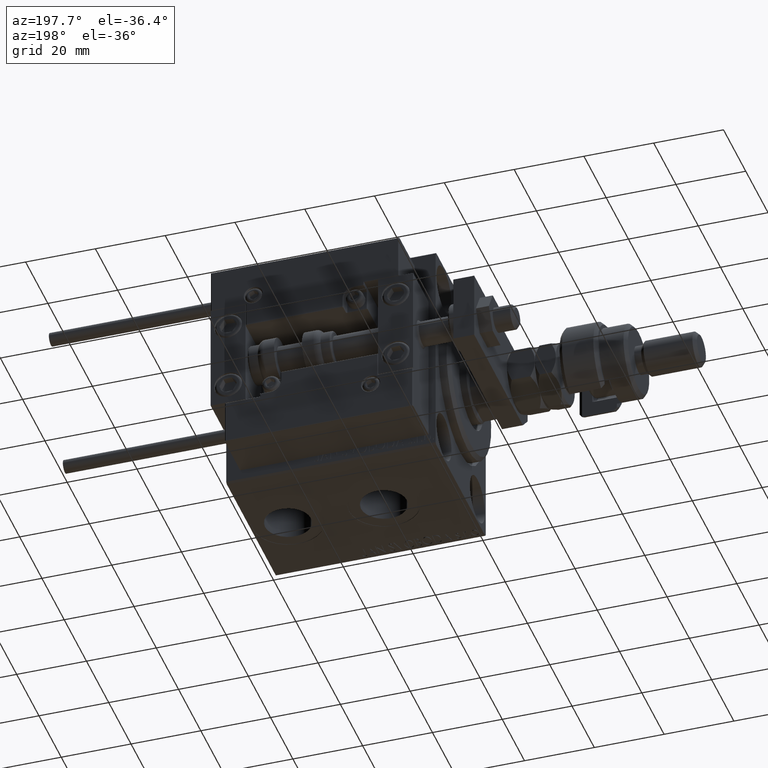
[diagram: clean part render]
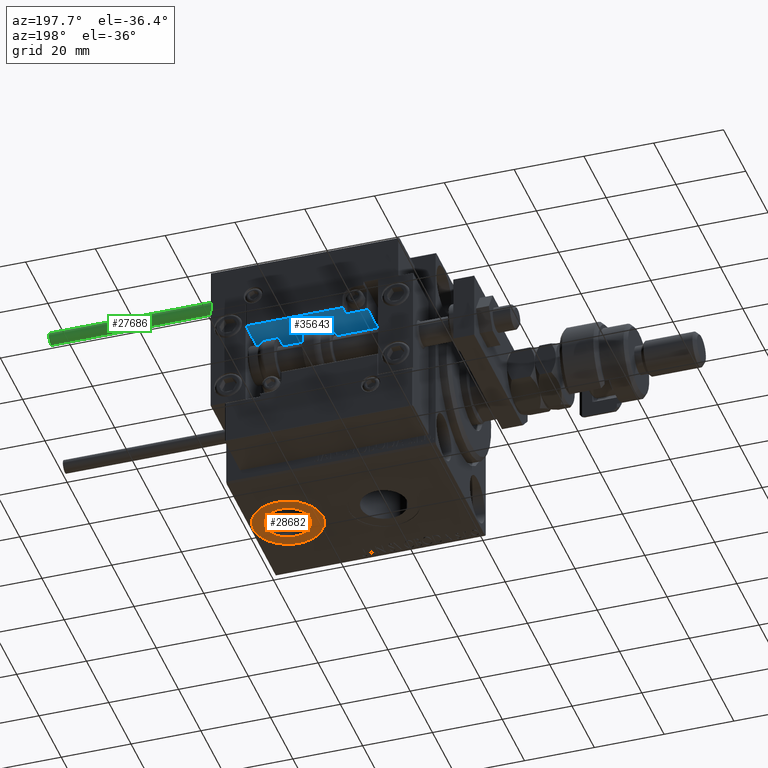
[diagram: same view with three faces highlighted in distinct colors, each labeled with its STEP entity id]
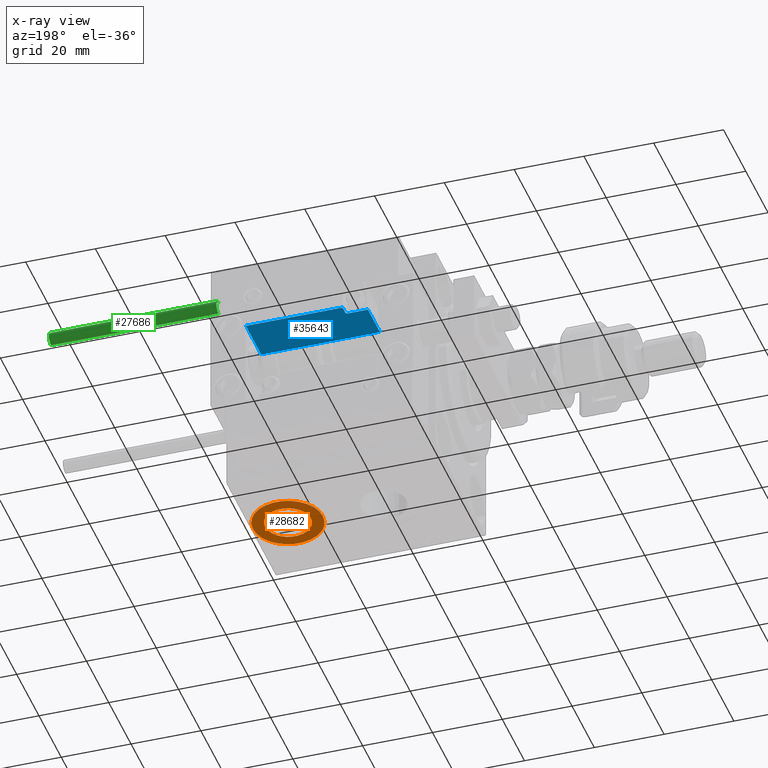
[diagram: x-ray of the same camera — body ghosted, the three highlighted faces saturated]
A machine part, auxiliary view with three faces highlighted in distinct colors.
The next image is the same camera in x-ray (body ghosted, the three faces saturated) — at least one of them is partly hidden behind the body in this view.
Their STEP definitions:

[orange] entity #28682 — the highlighted planar face has unit normal (0, 0, -1).
#788 = CIRCLE ( 'NONE', #25387, 10.00000000000000178 ) ;
#1000 = CARTESIAN_POINT ( 'NONE',  ( 42.91999999999999460, -6.655964947265702476E-15, -32.40000000000000568 ) ) ;
#1470 = CARTESIAN_POINT ( 'NONE',  ( 39.49999999999999289, -6.655964947265702476E-15, -32.40000000000000568 ) ) ;
#3249 = AXIS2_PLACEMENT_3D ( 'NONE', #50631, #38502, #46786 ) ;
#4137 = VERTEX_POINT ( 'NONE', #46632 ) ;
#9414 = EDGE_CURVE ( 'NONE', #4137, #40626, #34812, .T. ) ;
#10539 = VERTEX_POINT ( 'NONE', #50951 ) ;
#10754 = CARTESIAN_POINT ( 'NONE',  ( 49.49999999999999289, -6.655964947265702476E-15, -32.40000000000000568 ) ) ;
#11078 = EDGE_CURVE ( 'NONE', #40626, #4137, #26952, .T. ) ;
#11943 = VERTEX_POINT ( 'NONE', #1470 ) ;
#12390 = DIRECTION ( 'NONE',  ( -1.000000000000000000, 0.000000000000000000, 0.000000000000000000 ) ) ;
#14731 = DIRECTION ( 'NONE',  ( -1.000000000000000000, 0.000000000000000000, 0.000000000000000000 ) ) ;
#15873 = PLANE ( 'NONE',  #40957 ) ;
#16141 = CARTESIAN_POINT ( 'NONE',  ( 49.49999999999999289, -6.655964947265702476E-15, -32.40000000000000568 ) ) ;
#17378 = EDGE_LOOP ( 'NONE', ( #43135, #22791 ) ) ;
#17715 = EDGE_CURVE ( 'NONE', #11943, #10539, #788, .T. ) ;
#18860 = DIRECTION ( 'NONE',  ( 0.000000000000000000, 0.000000000000000000, -1.000000000000000000 ) ) ;
#22791 = ORIENTED_EDGE ( 'NONE', *, *, #9414, .F. ) ;
#23405 = DIRECTION ( 'NONE',  ( -1.000000000000000000, 0.000000000000000000, 0.000000000000000000 ) ) ;
#24278 = EDGE_CURVE ( 'NONE', #10539, #11943, #30857, .T. ) ;
#25387 = AXIS2_PLACEMENT_3D ( 'NONE', #40028, #18860, #14731 ) ;
#26952 = CIRCLE ( 'NONE', #3249, 6.580000000000002736 ) ;
#28233 = AXIS2_PLACEMENT_3D ( 'NONE', #10754, #40709, #23405 ) ;
#28682 = ADVANCED_FACE ( 'NONE', ( #33447, #36745 ), #15873, .T. ) ;
#28697 = ORIENTED_EDGE ( 'NONE', *, *, #24278, .T. ) ;
#30857 = CIRCLE ( 'NONE', #28233, 10.00000000000000178 ) ;
#33447 = FACE_BOUND ( 'NONE', #17378, .T. ) ;
#33923 = AXIS2_PLACEMENT_3D ( 'NONE', #36845, #50068, #12390 ) ;
#34812 = CIRCLE ( 'NONE', #33923, 6.580000000000002736 ) ;
#36471 = DIRECTION ( 'NONE',  ( 0.000000000000000000, 0.000000000000000000, -1.000000000000000000 ) ) ;
#36745 = FACE_OUTER_BOUND ( 'NONE', #40214, .T. ) ;
#36845 = CARTESIAN_POINT ( 'NONE',  ( 49.49999999999999289, -6.655964947265702476E-15, -32.40000000000000568 ) ) ;
#38502 = DIRECTION ( 'NONE',  ( 0.000000000000000000, 0.000000000000000000, -1.000000000000000000 ) ) ;
#40028 = CARTESIAN_POINT ( 'NONE',  ( 49.49999999999999289, -6.655964947265702476E-15, -32.40000000000000568 ) ) ;
#40214 = EDGE_LOOP ( 'NONE', ( #42155, #28697 ) ) ;
#40626 = VERTEX_POINT ( 'NONE', #1000 ) ;
#40709 = DIRECTION ( 'NONE',  ( 0.000000000000000000, 0.000000000000000000, -1.000000000000000000 ) ) ;
#40957 = AXIS2_PLACEMENT_3D ( 'NONE', #16141, #36471, #49427 ) ;
#42155 = ORIENTED_EDGE ( 'NONE', *, *, #17715, .T. ) ;
#43135 = ORIENTED_EDGE ( 'NONE', *, *, #11078, .F. ) ;
#46632 = CARTESIAN_POINT ( 'NONE',  ( 56.07999999999999829, -5.850147353426744223E-15, -32.40000000000000568 ) ) ;
#46786 = DIRECTION ( 'NONE',  ( -1.000000000000000000, 0.000000000000000000, 0.000000000000000000 ) ) ;
#49427 = DIRECTION ( 'NONE',  ( -1.000000000000000000, 0.000000000000000000, -0.000000000000000000 ) ) ;
#50068 = DIRECTION ( 'NONE',  ( 0.000000000000000000, 0.000000000000000000, -1.000000000000000000 ) ) ;
#50631 = CARTESIAN_POINT ( 'NONE',  ( 49.49999999999999289, -6.655964947265702476E-15, -32.40000000000000568 ) ) ;
#50951 = CARTESIAN_POINT ( 'NONE',  ( 59.50000000000000000, -5.431318148118349417E-15, -32.40000000000000568 ) ) ;

[blue] entity #35643 — the highlighted planar face has unit normal (0, 0, 1).
#15 = AXIS2_PLACEMENT_3D ( 'NONE', #20384, #44587, #11335 ) ;
#983 = VERTEX_POINT ( 'NONE', #48795 ) ;
#1409 = EDGE_CURVE ( 'NONE', #11657, #53049, #39234, .T. ) ;
#3614 = ORIENTED_EDGE ( 'NONE', *, *, #27115, .T. ) ;
#4695 = VECTOR ( 'NONE', #49101, 1000.000000000000000 ) ;
#6003 = VERTEX_POINT ( 'NONE', #50679 ) ;
#6128 = EDGE_LOOP ( 'NONE', ( #14207, #3614, #32522, #42134, #21801, #8012, #8613 ) ) ;
#6337 = DIRECTION ( 'NONE',  ( 0.000000000000000000, -0.000000000000000000, 1.000000000000000000 ) ) ;
#7585 = LINE ( 'NONE', #11145, #4695 ) ;
#8012 = ORIENTED_EDGE ( 'NONE', *, *, #47651, .T. ) ;
#8613 = ORIENTED_EDGE ( 'NONE', *, *, #44819, .T. ) ;
#10365 = CARTESIAN_POINT ( 'NONE',  ( -16.99999999999999289, 3.252606517456513302E-15, 13.70000000000000107 ) ) ;
#11145 = CARTESIAN_POINT ( 'NONE',  ( -16.99999999999999289, 3.252606517456513302E-15, 14.00000000000000000 ) ) ;
#11335 = DIRECTION ( 'NONE',  ( 0.000000000000000000, -0.000000000000000000, 1.000000000000000000 ) ) ;
#11657 = VERTEX_POINT ( 'NONE', #25747 ) ;
#13492 = DIRECTION ( 'NONE',  ( 0.000000000000000000, 0.000000000000000000, 1.000000000000000000 ) ) ;
#14207 = ORIENTED_EDGE ( 'NONE', *, *, #41702, .F. ) ;
#15522 = CARTESIAN_POINT ( 'NONE',  ( 16.99999999999999289, 3.252606517456513302E-15, 14.00000000000000000 ) ) ;
#16623 = DIRECTION ( 'NONE',  ( -1.000000000000000000, 0.000000000000000000, -0.000000000000000000 ) ) ;
#20384 = CARTESIAN_POINT ( 'NONE',  ( -16.99999999999999289, 3.252606517456513302E-15, 14.00000000000000000 ) ) ;
#21801 = ORIENTED_EDGE ( 'NONE', *, *, #1409, .T. ) ;
#21830 = CARTESIAN_POINT ( 'NONE',  ( 11.00000000000000000, 3.252606517456513302E-15, 10.69999999999999929 ) ) ;
#21943 = EDGE_CURVE ( 'NONE', #44134, #11657, #39857, .T. ) ;
#23301 = LINE ( 'NONE', #35917, #42313 ) ;
#24521 = VECTOR ( 'NONE', #47784, 1000.000000000000000 ) ;
#24877 = CARTESIAN_POINT ( 'NONE',  ( -16.99999999999999289, 3.252606517456513302E-15, 13.70000000000000107 ) ) ;
#25747 = CARTESIAN_POINT ( 'NONE',  ( 10.70000000000000107, 3.252606517456513302E-15, 13.70000000000000107 ) ) ;
#27115 = EDGE_CURVE ( 'NONE', #983, #48710, #45780, .T. ) ;
#27235 = CARTESIAN_POINT ( 'NONE',  ( 10.70000000000000107, 3.252606517456513302E-15, 14.00000000000000000 ) ) ;
#28644 = PLANE ( 'NONE',  #15 ) ;
#29994 = DIRECTION ( 'NONE',  ( -0.000000000000000000, -1.000000000000000000, -0.000000000000000000 ) ) ;
#32222 = CARTESIAN_POINT ( 'NONE',  ( 11.29999999999999893, 3.252606517456513302E-15, 10.69999999999999929 ) ) ;
#32522 = ORIENTED_EDGE ( 'NONE', *, *, #44189, .F. ) ;
#33497 = CIRCLE ( 'NONE', #51093, 0.5999999999999998668 ) ;
#35643 = ADVANCED_FACE ( 'NONE', ( #53385 ), #28644, .F. ) ;
#35917 = CARTESIAN_POINT ( 'NONE',  ( -16.99999999999999289, 3.252606517456513302E-15, 0.000000000000000000 ) ) ;
#39234 = LINE ( 'NONE', #10365, #24521 ) ;
#39857 = LINE ( 'NONE', #27235, #43963 ) ;
#39905 = CARTESIAN_POINT ( 'NONE',  ( -16.99999999999999289, 3.252606517456513302E-15, 0.000000000000000000 ) ) ;
#41356 = DIRECTION ( 'NONE',  ( -0.000000000000000000, -0.000000000000000000, -1.000000000000000000 ) ) ;
#41702 = EDGE_CURVE ( 'NONE', #983, #6003, #45222, .T. ) ;
#42134 = ORIENTED_EDGE ( 'NONE', *, *, #21943, .T. ) ;
#42313 = VECTOR ( 'NONE', #52710, 1000.000000000000000 ) ;
#42987 = VERTEX_POINT ( 'NONE', #39905 ) ;
#43109 = VECTOR ( 'NONE', #41356, 1000.000000000000000 ) ;
#43433 = CARTESIAN_POINT ( 'NONE',  ( 11.29999999999999893, 3.252606517456513302E-15, 11.29999999999999893 ) ) ;
#43963 = VECTOR ( 'NONE', #6337, 1000.000000000000000 ) ;
#44134 = VERTEX_POINT ( 'NONE', #47325 ) ;
#44189 = EDGE_CURVE ( 'NONE', #44134, #48710, #33497, .T. ) ;
#44587 = DIRECTION ( 'NONE',  ( 0.000000000000000000, 1.000000000000000000, 0.000000000000000000 ) ) ;
#44819 = EDGE_CURVE ( 'NONE', #42987, #6003, #23301, .T. ) ;
#45222 = LINE ( 'NONE', #15522, #43109 ) ;
#45780 = LINE ( 'NONE', #21830, #48714 ) ;
#47325 = CARTESIAN_POINT ( 'NONE',  ( 10.70000000000000107, 3.252606517456513302E-15, 11.29999999999999893 ) ) ;
#47651 = EDGE_CURVE ( 'NONE', #53049, #42987, #7585, .T. ) ;
#47784 = DIRECTION ( 'NONE',  ( -1.000000000000000000, 0.000000000000000000, -0.000000000000000000 ) ) ;
#48710 = VERTEX_POINT ( 'NONE', #32222 ) ;
#48714 = VECTOR ( 'NONE', #16623, 1000.000000000000000 ) ;
#48795 = CARTESIAN_POINT ( 'NONE',  ( 16.99999999999999289, 3.252606517456513302E-15, 10.69999999999999929 ) ) ;
#49101 = DIRECTION ( 'NONE',  ( -0.000000000000000000, -0.000000000000000000, -1.000000000000000000 ) ) ;
#50679 = CARTESIAN_POINT ( 'NONE',  ( 16.99999999999999289, 3.252606517456513302E-15, 0.000000000000000000 ) ) ;
#51093 = AXIS2_PLACEMENT_3D ( 'NONE', #43433, #29994, #13492 ) ;
#52710 = DIRECTION ( 'NONE',  ( 1.000000000000000000, 0.000000000000000000, 0.000000000000000000 ) ) ;
#53049 = VERTEX_POINT ( 'NONE', #24877 ) ;
#53385 = FACE_OUTER_BOUND ( 'NONE', #6128, .T. ) ;

[green] entity #27686 — the highlighted cylindrical surface (edge-blend (fillet) strip) has radius 1.9 mm, axis along (-1, -0, 0).
#412 = AXIS2_PLACEMENT_3D ( 'NONE', #9331, #22510, #9597 ) ;
#2206 = VERTEX_POINT ( 'NONE', #19939 ) ;
#3479 = DIRECTION ( 'NONE',  ( 0.000000000000000000, 0.000000000000000000, 1.000000000000000000 ) ) ;
#4770 = EDGE_CURVE ( 'NONE', #48377, #2206, #29351, .T. ) ;
#5371 = ORIENTED_EDGE ( 'NONE', *, *, #4770, .T. ) ;
#5750 = CYLINDRICAL_SURFACE ( 'NONE', #412, 1.899999999999999467 ) ;
#6483 = EDGE_LOOP ( 'NONE', ( #52813, #36375, #5371, #21372 ) ) ;
#8533 = CARTESIAN_POINT ( 'NONE',  ( -1.899999999999999467, 0.000000000000000000, 48.00000000000000000 ) ) ;
#9331 = CARTESIAN_POINT ( 'NONE',  ( 0.000000000000000000, 0.000000000000000000, 48.00000000000000000 ) ) ;
#9597 = DIRECTION ( 'NONE',  ( -1.000000000000000000, 0.000000000000000000, 0.000000000000000000 ) ) ;
#11731 = DIRECTION ( 'NONE',  ( 1.000000000000000000, 0.000000000000000000, 0.000000000000000000 ) ) ;
#12638 = FACE_OUTER_BOUND ( 'NONE', #6483, .T. ) ;
#13249 = CIRCLE ( 'NONE', #51014, 1.899999999999999467 ) ;
#13900 = CARTESIAN_POINT ( 'NONE',  ( 1.899999999999999467, 2.326828918379970872E-16, 0.000000000000000000 ) ) ;
#19939 = CARTESIAN_POINT ( 'NONE',  ( -1.899999999999999467, 0.000000000000000000, 0.000000000000000000 ) ) ;
#20761 = DIRECTION ( 'NONE',  ( 0.000000000000000000, 0.000000000000000000, 1.000000000000000000 ) ) ;
#20885 = LINE ( 'NONE', #8533, #27249 ) ;
#21372 = ORIENTED_EDGE ( 'NONE', *, *, #22535, .F. ) ;
#22510 = DIRECTION ( 'NONE',  ( -0.000000000000000000, -0.000000000000000000, -1.000000000000000000 ) ) ;
#22535 = EDGE_CURVE ( 'NONE', #24797, #2206, #20885, .T. ) ;
#22695 = VECTOR ( 'NONE', #38798, 1000.000000000000000 ) ;
#24797 = VERTEX_POINT ( 'NONE', #37881 ) ;
#27249 = VECTOR ( 'NONE', #50321, 1000.000000000000000 ) ;
#27617 = AXIS2_PLACEMENT_3D ( 'NONE', #50198, #20761, #41108 ) ;
#27686 = ADVANCED_FACE ( 'NONE', ( #12638 ), #5750, .T. ) ;
#29351 = CIRCLE ( 'NONE', #27617, 1.899999999999999467 ) ;
#30293 = LINE ( 'NONE', #47087, #22695 ) ;
#30328 = VERTEX_POINT ( 'NONE', #51386 ) ;
#31781 = CARTESIAN_POINT ( 'NONE',  ( 0.000000000000000000, 0.000000000000000000, 48.00000000000000000 ) ) ;
#36375 = ORIENTED_EDGE ( 'NONE', *, *, #37047, .T. ) ;
#37047 = EDGE_CURVE ( 'NONE', #30328, #48377, #30293, .T. ) ;
#37881 = CARTESIAN_POINT ( 'NONE',  ( -1.899999999999999467, 0.000000000000000000, 48.00000000000000000 ) ) ;
#38798 = DIRECTION ( 'NONE',  ( -0.000000000000000000, -0.000000000000000000, -1.000000000000000000 ) ) ;
#41108 = DIRECTION ( 'NONE',  ( 1.000000000000000000, 0.000000000000000000, 0.000000000000000000 ) ) ;
#42329 = EDGE_CURVE ( 'NONE', #30328, #24797, #13249, .T. ) ;
#47087 = CARTESIAN_POINT ( 'NONE',  ( 1.899999999999999467, 2.326828918379970872E-16, 48.00000000000000000 ) ) ;
#48377 = VERTEX_POINT ( 'NONE', #13900 ) ;
#50198 = CARTESIAN_POINT ( 'NONE',  ( 0.000000000000000000, 0.000000000000000000, 0.000000000000000000 ) ) ;
#50321 = DIRECTION ( 'NONE',  ( -0.000000000000000000, -0.000000000000000000, -1.000000000000000000 ) ) ;
#51014 = AXIS2_PLACEMENT_3D ( 'NONE', #31781, #3479, #11731 ) ;
#51386 = CARTESIAN_POINT ( 'NONE',  ( 1.899999999999999467, 2.326828918379970872E-16, 48.00000000000000000 ) ) ;
#52813 = ORIENTED_EDGE ( 'NONE', *, *, #42329, .F. ) ;